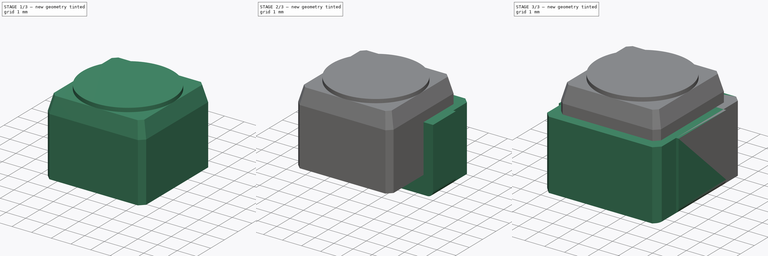
[diagram: build sequence overview — one tinted view per stage of 3, left to right]
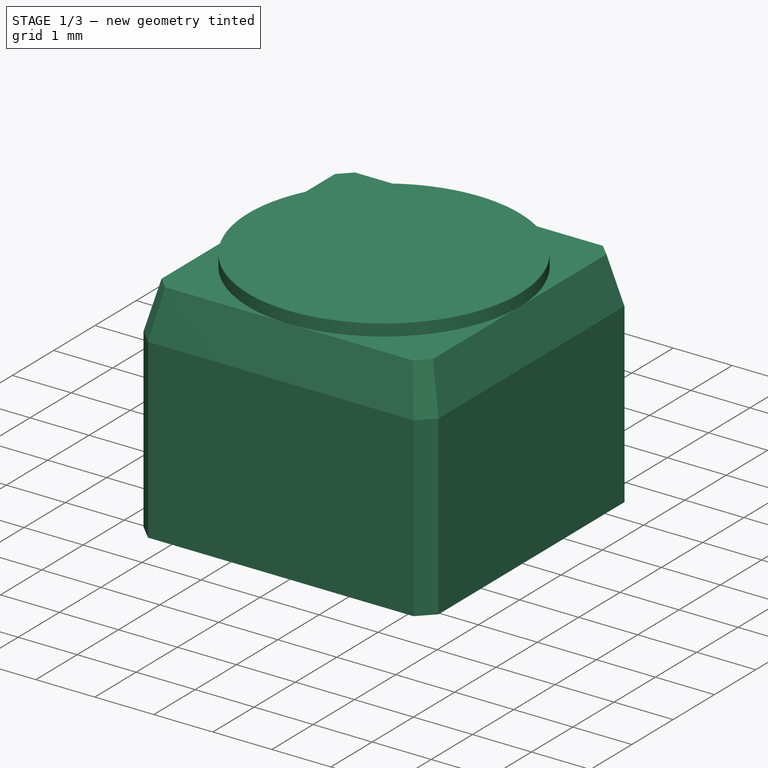
[diagram: stage 1 of 3 — iso view after this stage's code; geometry added in this stage tinted green]
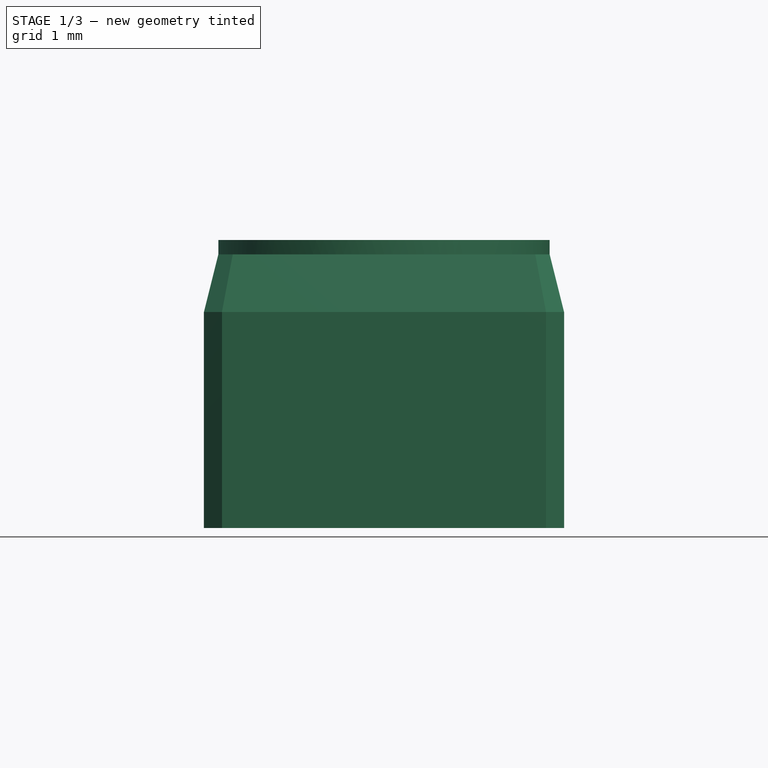
[diagram: stage 1 of 3 — front view after this stage's code; geometry added in this stage tinted green]
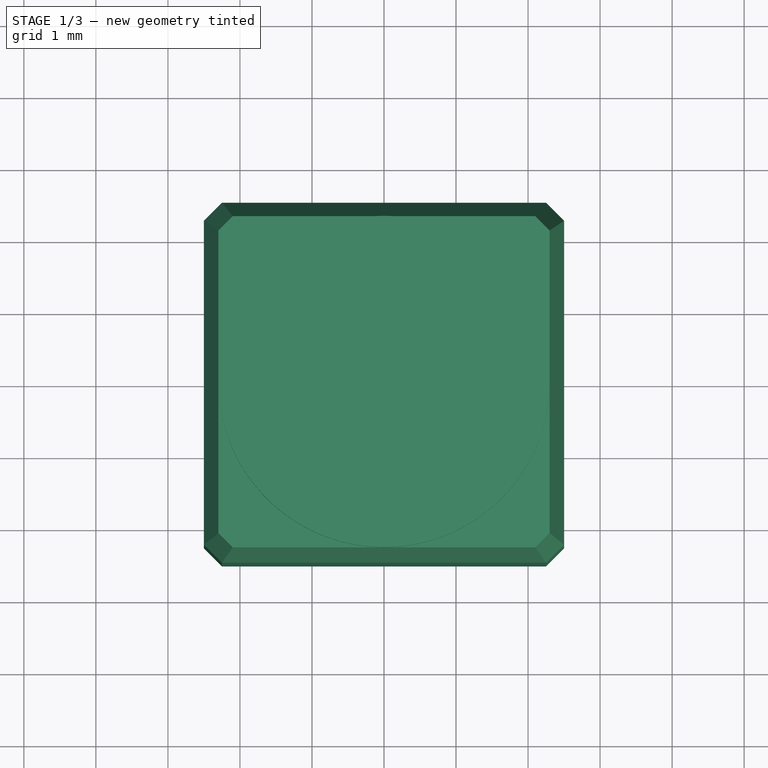
[diagram: stage 1 of 3 — top view after this stage's code; geometry added in this stage tinted green]
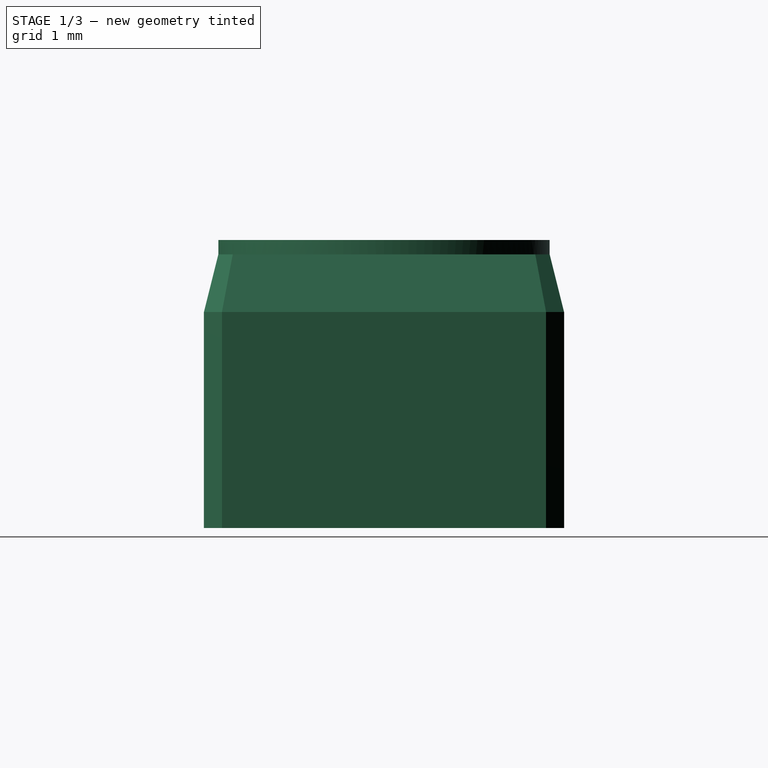
[diagram: stage 1 of 3 — right view after this stage's code; geometry added in this stage tinted green]
FCSTD DOCUMENT  (FreeCAD 1.0R38806 (Git))
Label: SW_Push_SPEH
License: All rights reserved
LicenseURL: http://en.wikipedia.org/wiki/All_rights_reserved
objects: Sketcher::SketchObject×7, PartDesign::Mirrored×4, PartDesign::Body×3, PartDesign::Pad×2, PartDesign::MultiTransform×2, PartDesign::Plane×1, PartDesign::AdditivePipe×1, Part::Mirroring×1, PartDesign::Fillet×1, PartDesign::AdditiveLoft×1, App::Part×1
note: 46 computed .brp shape members not serialized (recipe doc carries the construction recipe); baked Part::Feature solids carry a one-line shape summary decoded from their .brp

FEATURE [PartDesign::Body] Body  label="Stator"
  AllowCompound = false
  Group = -> [Sketch,Pad,Fillet,MultiTransform,Mirrored,Mirrored001]
  Origin = -> Origin
  Tip = -> MultiTransform
FEATURE [Sketcher::SketchObject] Sketch003  label="ac_h1"
  ArcFitTolerance = 1e-06
  AttachmentOffset = pos=(0,0,1) rot=(0,0,1;0rad)
  AttachmentSupport = -> [XY_Plane002]
  FullyConstrained = true
  MakeInternals = false
  MapMode = 5
  Placement = pos=(0,0,1) rot=(0,0,1;0rad)
  sketch-geometry (5):
    g0: LineSegment StartX=0 StartY=2.5 StartZ=0 EndX=0 EndY=0 EndZ=0
    g1: LineSegment StartX=0 StartY=0 StartZ=0 EndX=2.5 EndY=0 EndZ=0
    g2: LineSegment StartX=2.5 StartY=0 StartZ=0 EndX=2.5 EndY=2.25 EndZ=0
    g3: LineSegment StartX=2.25 StartY=2.5 StartZ=0 EndX=0 EndY=2.5 EndZ=0
    g4: LineSegment StartX=2.25 StartY=2.5 StartZ=0 EndX=2.5 EndY=2.25 EndZ=0
  constraints (15):
    c: Coincident(g0,g1)
    c: Coincident(g1,g2)
    c: Coincident(g3,g0)
    c: Vertical(g0)
    c: Vertical(g2)
    c: Horizontal(g1)
    c: Horizontal(g3)
    c: PointOnObject(g0,g-2)
    c: PointOnObject(g1,g-1)
    c: Coincident(g3,g4)
    c: Coincident(g4,g2)
    c: Equal(g1,g0)
    c: DistanceX(g1,g1) = 2.5
    c: DistanceX(g4,g4) = 0.25
    c: Equal(g2,g3)
FEATURE [Sketcher::SketchObject] Sketch004  label="ac_h4"
  ArcFitTolerance = 1e-06
  AttachmentOffset = pos=(0,0,4) rot=(0,0,1;0rad)
  AttachmentSupport = -> [XY_Plane002]
  FullyConstrained = true
  MakeInternals = false
  MapMode = 5
  Placement = pos=(0,0,4) rot=(0,0,1;0rad)
  sketch-geometry (5):
    g0: LineSegment StartX=0 StartY=2.5 StartZ=0 EndX=0 EndY=0 EndZ=0
    g1: LineSegment StartX=0 StartY=0 StartZ=0 EndX=2.5 EndY=0 EndZ=0
    g2: LineSegment StartX=2.5 StartY=0 StartZ=0 EndX=2.5 EndY=2.25 EndZ=0
    g3: LineSegment StartX=2.25 StartY=2.5 StartZ=0 EndX=0 EndY=2.5 EndZ=0
    g4: LineSegment StartX=2.25 StartY=2.5 StartZ=0 EndX=2.5 EndY=2.25 EndZ=0
  constraints (15):
    c: Coincident(g0,g1)
    c: Coincident(g1,g2)
    c: Coincident(g3,g0)
    c: Vertical(g0)
    c: Vertical(g2)
    c: Horizontal(g1)
    c: Horizontal(g3)
    c: PointOnObject(g0,g-2)
    c: PointOnObject(g1,g-1)
    c: Coincident(g3,g4)
    c: Coincident(g4,g2)
    c: Equal(g1,g0)
    c: DistanceX(g1,g1) = 2.5
    c: DistanceX(g4,g4) = 0.25
    c: Equal(g2,g3)
FEATURE [Sketcher::SketchObject] Sketch005  label="ac_h4.8"
  ArcFitTolerance = 1e-06
  AttachmentOffset = pos=(0,0,4.8) rot=(0,0,1;0rad)
  AttachmentSupport = -> [XY_Plane002]
  FullyConstrained = true
  MakeInternals = false
  MapMode = 5
  Placement = pos=(0,0,4.8) rot=(0,0,1;0rad)
  sketch-geometry (5):
    g0: LineSegment StartX=0 StartY=2.3 StartZ=0 EndX=0 EndY=0 EndZ=0
    g1: LineSegment StartX=0 StartY=0 StartZ=0 EndX=2.3 EndY=0 EndZ=0
    g2: LineSegment StartX=2.3 StartY=0 StartZ=0 EndX=2.3 EndY=2.1 EndZ=0
    g3: LineSegment StartX=2.1 StartY=2.3 StartZ=0 EndX=0 EndY=2.3 EndZ=0
    g4: LineSegment StartX=2.1 StartY=2.3 StartZ=0 EndX=2.3 EndY=2.1 EndZ=0
  constraints (15):
    c: Coincident(g0,g1)
    c: Coincident(g1,g2)
    c: Coincident(g3,g0)
    c: Vertical(g0)
    c: Vertical(g2)
    c: Horizontal(g1)
    c: Horizontal(g3)
    c: PointOnObject(g0,g-2)
    c: PointOnObject(g1,g-1)
    c: Coincident(g3,g4)
    c: Coincident(g4,g2)
    c: Equal(g1,g0)
    c: DistanceX(g1,g1) = 2.3
    c: DistanceX(g4,g4) = 0.2
    c: Equal(g2,g3)
FEATURE [PartDesign::AdditiveLoft] AdditiveLoft
  Closed = false
  Profile = -> Sketch003
  Refine = true
  Ruled = true
  Sections = -> [Sketch004,Sketch005]
  Suppressed = false
FEATURE [Sketcher::SketchObject] Sketch006
  ArcFitTolerance = 1e-06
  AttachmentOffset = pos=(0,0,5) rot=(0,0,1;0rad)
  AttachmentSupport = -> [XY_Plane002]
  FullyConstrained = true
  MakeInternals = false
  MapMode = 5
  Placement = pos=(0,0,5) rot=(0,0,1;0rad)
  sketch-geometry (1):
    g0: Circle CenterX=0 CenterY=0 CenterZ=0 NormalX=0 NormalY=0 NormalZ=1 AngleXU=0 Radius=2.3
  constraints (2):
    c: Coincident(g0,g-1)
    c: Diameter(g0) = 4.6
FEATURE [PartDesign::Mirrored] Mirrored002
  MirrorPlane = -> Sketch003 [V_Axis]
  Refine = true
  Suppressed = false
  TransformMode = 0
FEATURE [PartDesign::Mirrored] Mirrored003
  MirrorPlane = -> Sketch003 [H_Axis]
  Refine = true
  Suppressed = false
  TransformMode = 0
FEATURE [PartDesign::MultiTransform] MultiTransform001
  BaseFeature = -> AdditiveLoft
  Originals = -> [AdditiveLoft]
  Refine = true
  Suppressed = false
  TransformMode = 0
  Transformations = -> [Mirrored002,Mirrored003]
FEATURE [PartDesign::Pad] Pad001
  BaseFeature = -> MultiTransform001
  Direction = (0,0,1)
  Length = 10
  Length2 = 10
  Profile = -> Sketch006
  ReferenceAxis = -> Sketch006 [N_Axis]
  Refine = true
  Reversed = true
  Suppressed = false
  Type = 2
FEATURE [PartDesign::Body] Body002  label="Actor"
  AllowCompound = false
  Group = -> [Sketch003,Sketch004,Sketch005,AdditiveLoft,Sketch006,MultiTransform001,Mirrored002,Mirrored003,Pad001]
  Origin = -> Origin002
  Tip = -> Pad001
FEATURE [App::Part] Part  label="SW_Push_SPEH"
  Group = -> [Body001,Part__Mirroring,Body,Body002]
  Origin = -> Origin003
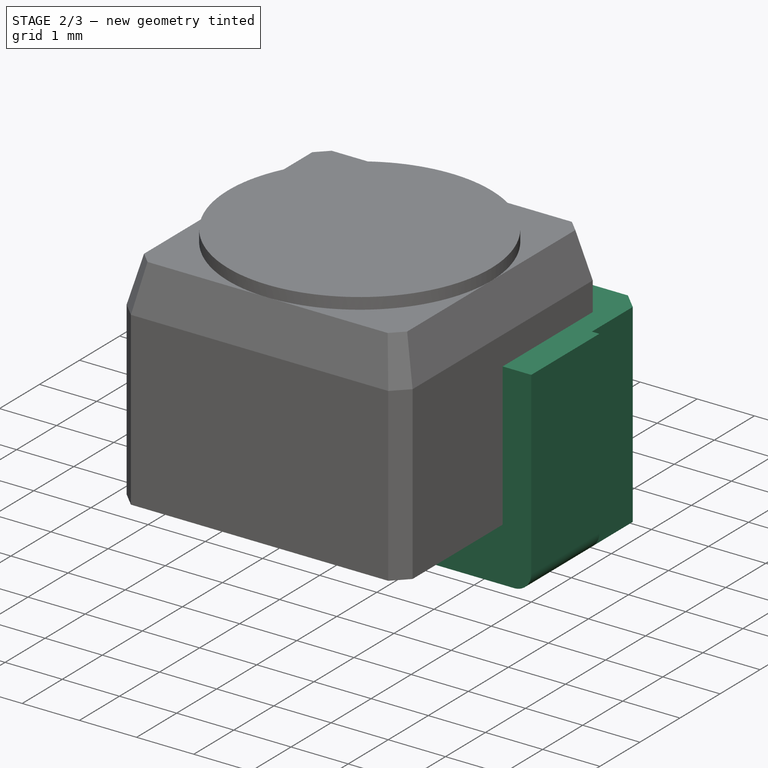
[diagram: stage 2 of 3 — iso view after this stage's code; geometry added in this stage tinted green]
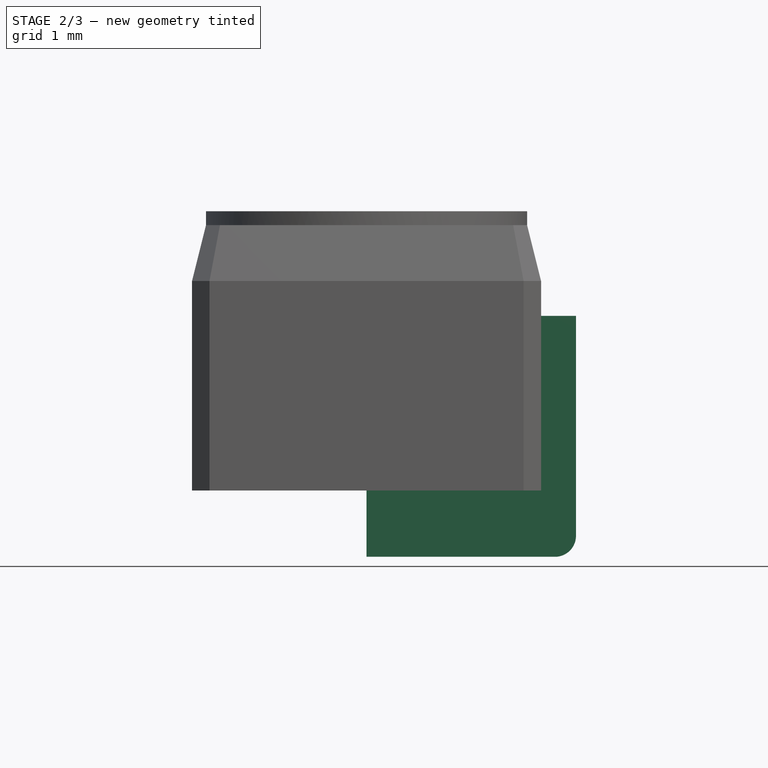
[diagram: stage 2 of 3 — front view after this stage's code; geometry added in this stage tinted green]
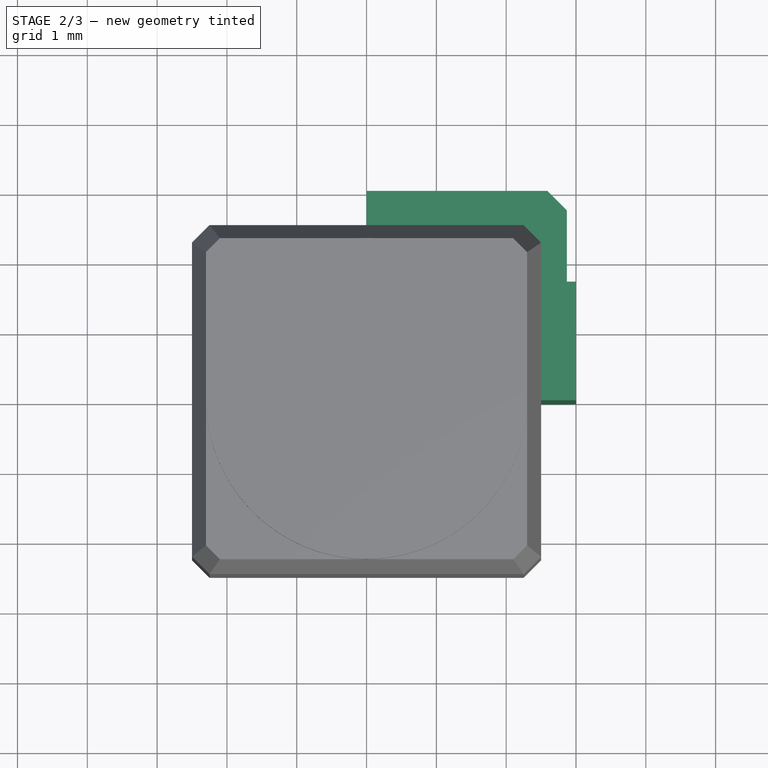
[diagram: stage 2 of 3 — top view after this stage's code; geometry added in this stage tinted green]
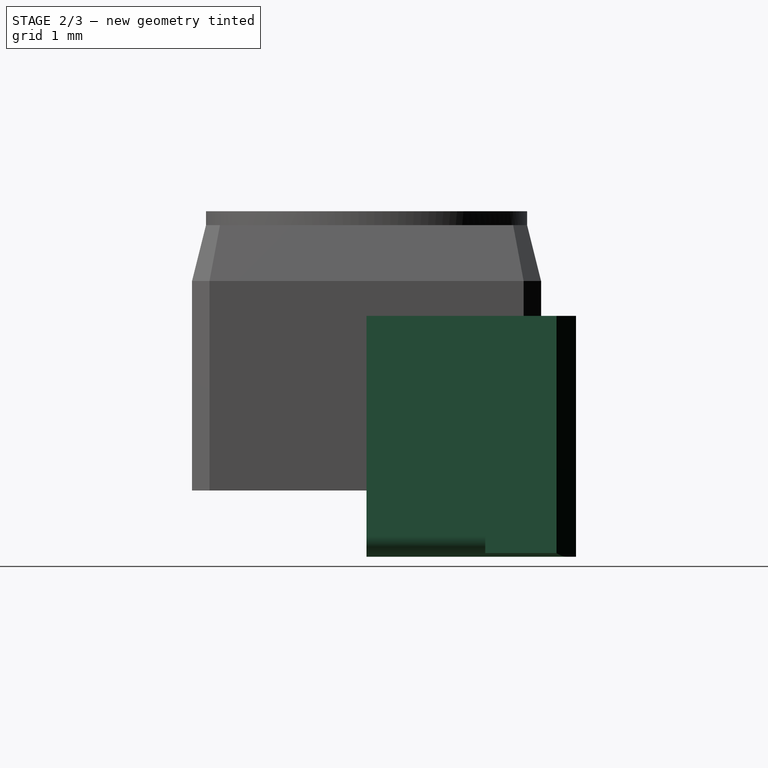
[diagram: stage 2 of 3 — right view after this stage's code; geometry added in this stage tinted green]
FEATURE [Sketcher::SketchObject] Sketch
  ArcFitTolerance = 1e-06
  AttachmentOffset = pos=(0,0,0.05) rot=(0,0,1;0rad)
  AttachmentSupport = -> [XY_Plane]
  FullyConstrained = true
  MakeInternals = false
  MapMode = 5
  Placement = pos=(0,0,0.05) rot=(0,0,1;0rad)
  sketch-geometry (7):
    g0: LineSegment StartX=0 StartY=3 StartZ=0 EndX=0 EndY=0 EndZ=0
    g1: LineSegment StartX=0 StartY=0 StartZ=0 EndX=3 EndY=0 EndZ=0
    g2: LineSegment StartX=3 StartY=0 StartZ=0 EndX=3 EndY=1.7 EndZ=0
    g3: LineSegment StartX=2.59 StartY=3 StartZ=0 EndX=0 EndY=3 EndZ=0
    g4: LineSegment StartX=2.59 StartY=3 StartZ=0 EndX=2.87 EndY=2.72 EndZ=0
    g5: LineSegment StartX=2.87 StartY=2.72 StartZ=0 EndX=2.87 EndY=1.7 EndZ=0
    g6: LineSegment StartX=2.87 StartY=1.7 StartZ=0 EndX=3 EndY=1.7 EndZ=0
  constraints (20):
    c: Coincident(g0,g1)
    c: Coincident(g1,g2)
    c: Coincident(g3,g0)
    c: Vertical(g0)
    c: Vertical(g2)
    c: Horizontal(g1)
    c: Horizontal(g3)
    c: Coincident(g0,g-1)
    c: Coincident(g3,g4)
    c: Equal(g1,g0)
    c: Vertical(g5)
    c: Coincident(g5,g6)
    c: Horizontal(g6)
    c: Coincident(g2,g6)
    c: Coincident(g4,g5)
    c: DistanceX(g-1,g1) = 3
    c: DistanceX(g4,g2) = 0.13
    c: DistanceX(g4,g4) = 0.28
    c: Angle(g4,g5) = 2.35619
    c: DistanceY(g2,g2) = 1.7
FEATURE [PartDesign::Pad] Pad
  Direction = (0,0,1)
  Length = 3.45
  Length2 = 10
  Profile = -> Sketch
  ReferenceAxis = -> Sketch [N_Axis]
  Refine = true
  Suppressed = false
  Type = 0
FEATURE [PartDesign::Fillet] Fillet
  Base = -> Pad [Edge9]
  BaseFeature = -> Pad
  Radius = 0.3
  Refine = true
  SupportTransform = false
  Suppressed = false
  UseAllEdges = false
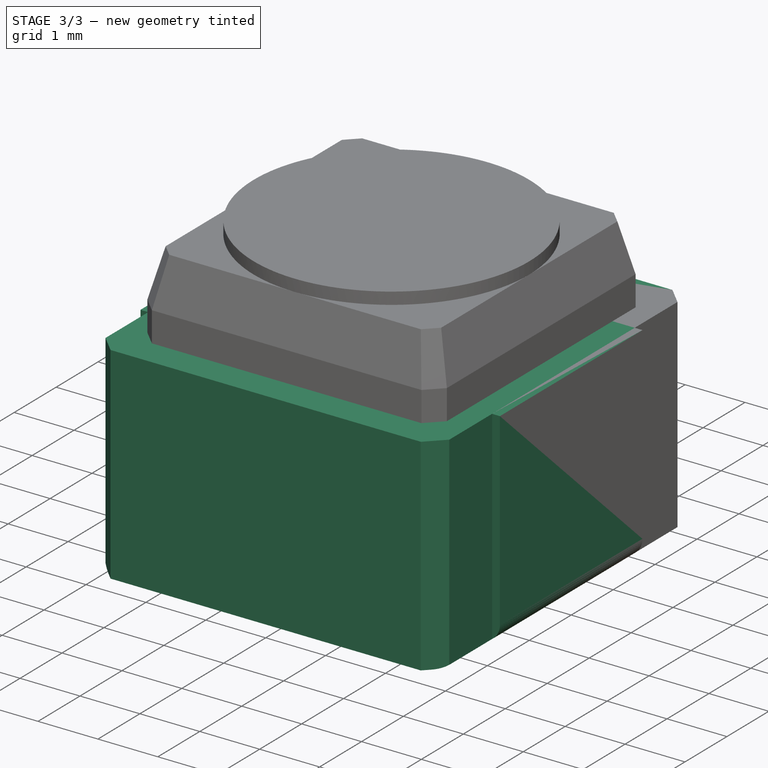
[diagram: stage 3 of 3 — iso view after this stage's code; geometry added in this stage tinted green]
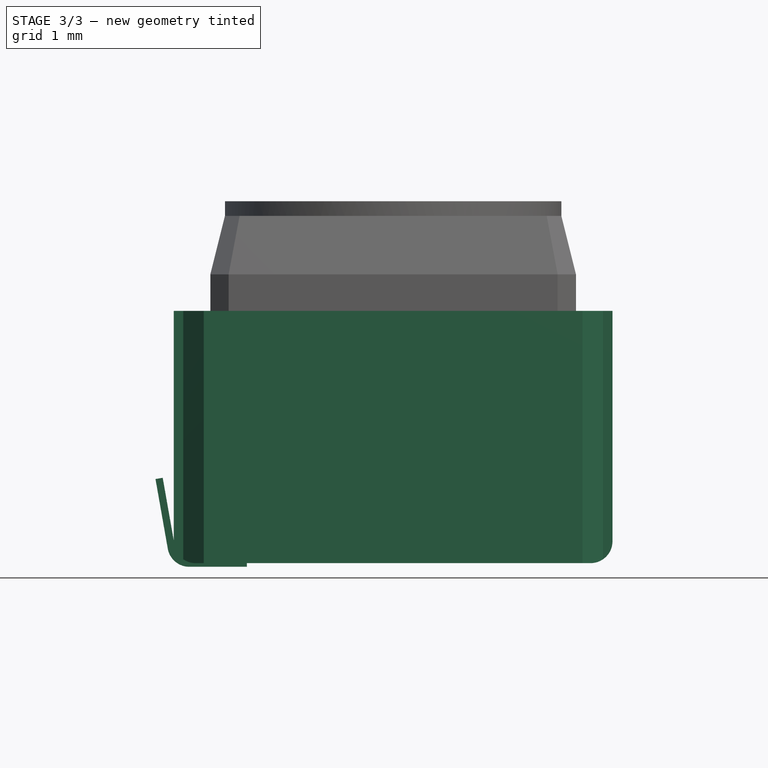
[diagram: stage 3 of 3 — front view after this stage's code; geometry added in this stage tinted green]
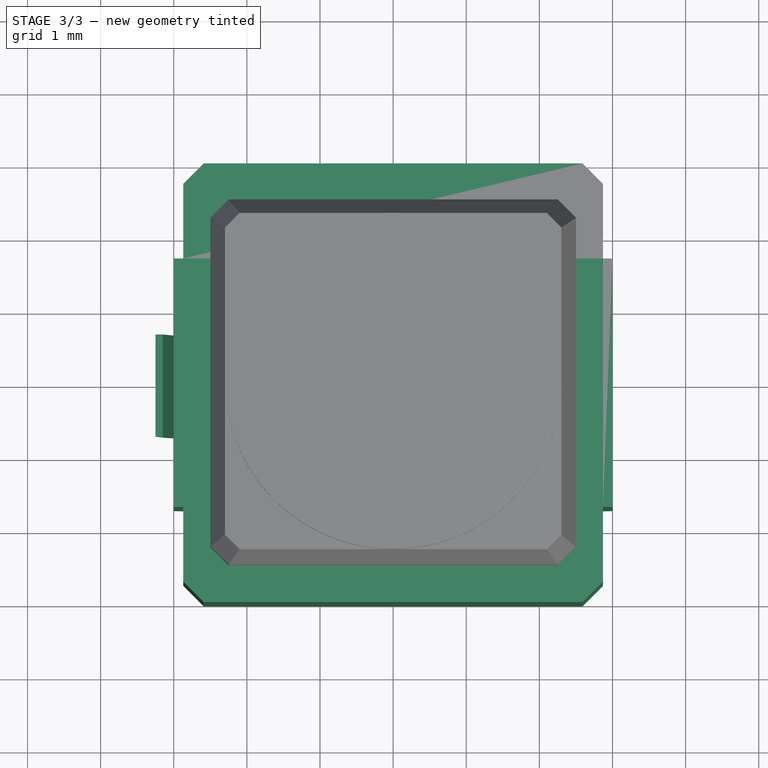
[diagram: stage 3 of 3 — top view after this stage's code; geometry added in this stage tinted green]
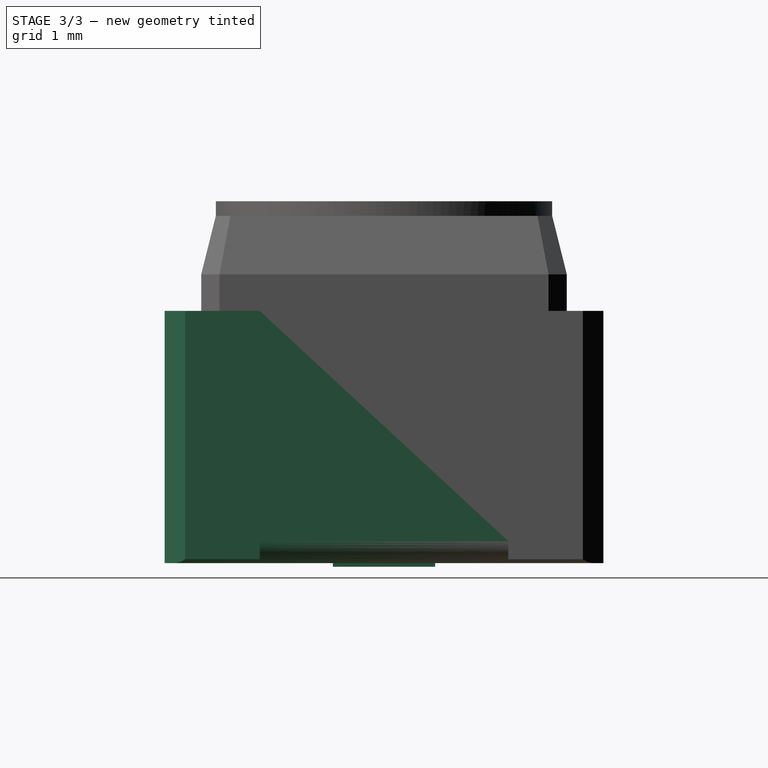
[diagram: stage 3 of 3 — right view after this stage's code; geometry added in this stage tinted green]
FEATURE [PartDesign::Mirrored] Mirrored
  MirrorPlane = -> Sketch [V_Axis]
  Refine = true
  Suppressed = false
  TransformMode = 0
FEATURE [PartDesign::Mirrored] Mirrored001
  MirrorPlane = -> Sketch [H_Axis]
  Refine = true
  Suppressed = false
  TransformMode = 0
FEATURE [Sketcher::SketchObject] Sketch001  label="el_trj"
  ArcFitTolerance = 1e-06
  AttachmentSupport = -> [XZ_Plane001]
  FullyConstrained = true
  MakeInternals = false
  MapMode = 5
  Placement = pos=(0,0,0) rot=(1,0,0;1.5708rad)
  sketch-geometry (4):
    g0: LineSegment StartX=3.25 StartY=1.2 StartZ=0 EndX=3.08212 EndY=0.247906 EndZ=0
    g1: LineSegment StartX=2.78668 StartY=0 StartZ=0 EndX=2 EndY=0 EndZ=0
    g2: ArcOfCircle CenterX=2.78668 CenterY=0.3 CenterZ=0 NormalX=0 NormalY=0 NormalZ=1 AngleXU=0 Radius=0.3 StartAngle=4.71239 EndAngle=6.10865
    g3: GeomPoint [constr] X=3.03841 Y=0 Z=0
  constraints (11):
    c: PointOnObject(g1,g-1)
    c: Horizontal(g1)
    c: PointOnObject(g3,g1)
    c: PointOnObject(g3,g0)
    c: Tangent(g1,g2) = 1.5708
    c: Tangent(g0,g2) = 1.5708
    c: Radius(g2) = 0.3
    c: DistanceY(g-1,g0) = 1.2
    c: DistanceX(g-1,g0) = 3.25
    c: Angle(g-1,g0) = 1.39626
    c: DistanceX(g-1,g1) = 2
FEATURE [PartDesign::Plane] DatumPlane
  AttachmentSupport = -> [Sketch001]
  Length = 60
  MapMode = 7
  Placement = pos=(2,0,0) rot=(0.57735,0.57735,0.57735;2.0944rad)
  ResizeMode = 0
  Width = 60
FEATURE [Sketcher::SketchObject] Sketch002  label="el_crs"
  ArcFitTolerance = 1e-06
  AttachmentSupport = -> [DatumPlane]
  FullyConstrained = true
  MakeInternals = false
  MapMode = 5
  Placement = pos=(2,0,0) rot=(0.57735,0.57735,0.57735;2.0944rad)
  sketch-geometry (4):
    g0: LineSegment StartX=-0.7 StartY=0.1 StartZ=0 EndX=-0.7 EndY=0 EndZ=0
    g1: LineSegment StartX=-0.7 StartY=0 StartZ=0 EndX=0.7 EndY=0 EndZ=0
    g2: LineSegment StartX=0.7 StartY=0 StartZ=0 EndX=0.7 EndY=0.1 EndZ=0
    g3: LineSegment StartX=0.7 StartY=0.1 StartZ=0 EndX=-0.7 EndY=0.1 EndZ=0
  constraints (11):
    c: Coincident(g0,g1)
    c: Coincident(g1,g2)
    c: Coincident(g2,g3)
    c: Coincident(g3,g0)
    c: Vertical(g0)
    c: Vertical(g2)
    c: Horizontal(g1)
    c: PointOnObject(g1,g-1)
    c: DistanceX(g3,g3) = 1.4
    c: DistanceY(g2,g2) = 0.1
    c: Symmetric(g2,g0,g-2)
FEATURE [PartDesign::AdditivePipe] AdditivePipe
  AuxilleryCurvelinear = true
  AuxillerySpineTangent = false
  Binormal = (0,0,0)
  Mode = 0
  Placement = pos=(2,0,0) rot=(0.57735,0.57735,0.57735;2.0944rad)
  Profile = -> Sketch002
  Refine = true
  Spine = -> Sketch001
  SpineTangent = false
  Suppressed = false
  Transformation = 0
  Transition = 0
FEATURE [PartDesign::Body] Body001  label="Electrode right"
  AllowCompound = false
  Group = -> [Sketch001,DatumPlane,Sketch002,AdditivePipe]
  Origin = -> Origin001
  Tip = -> AdditivePipe
FEATURE [Part::Mirroring] Part__Mirroring  label="Electrode left"
  Base = (0,0,0)
  Normal = (1,0,0)
  Source = -> Body001
FEATURE [PartDesign::MultiTransform] MultiTransform
  BaseFeature = -> Fillet
  Originals = -> [Pad,Fillet]
  Refine = true
  Suppressed = false
  TransformMode = 0
  Transformations = -> [Mirrored,Mirrored001]
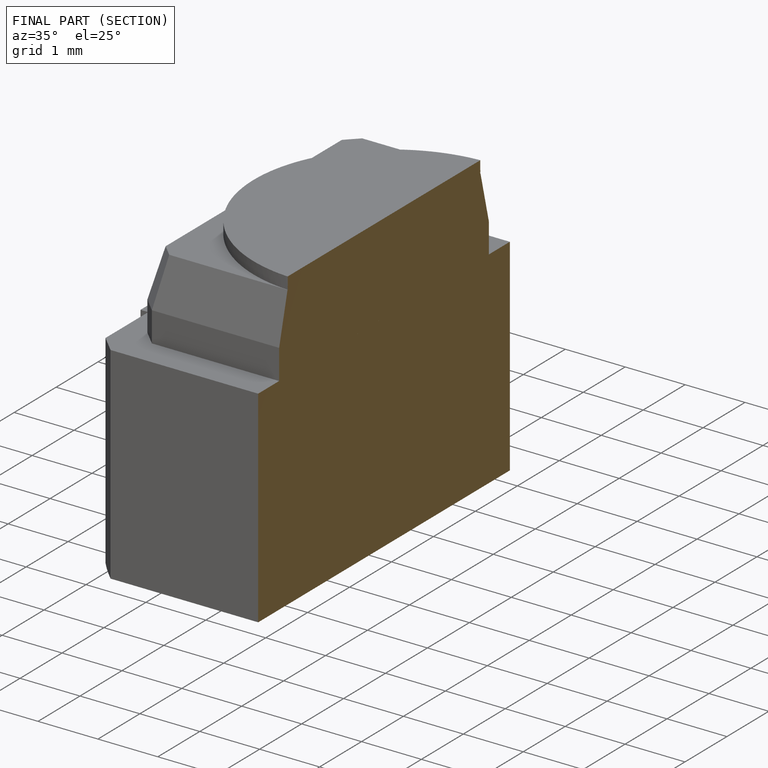
[diagram: finished part — half-section view (interior)]
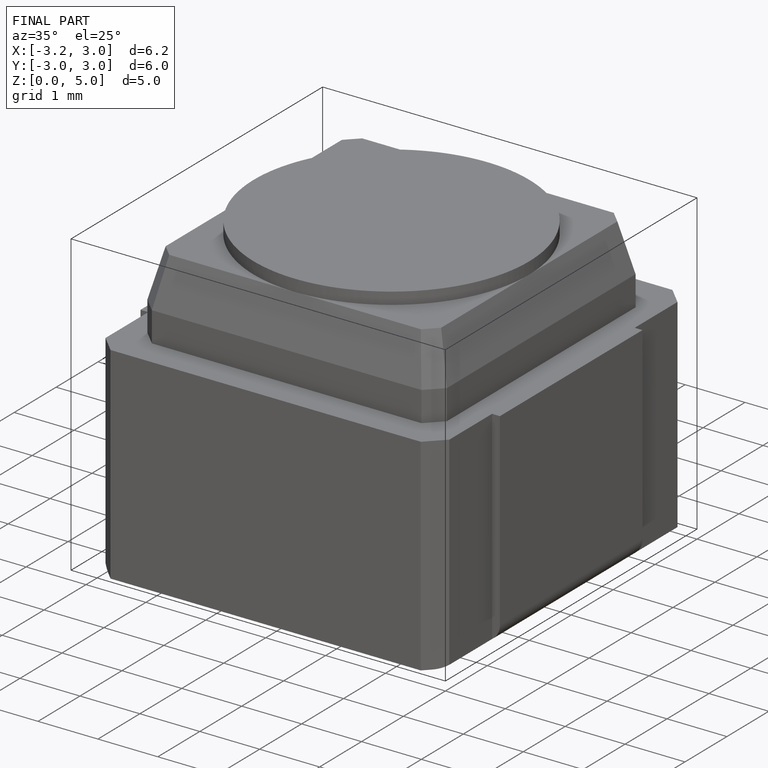
[diagram: finished part — iso view with bounding-box wireframe]
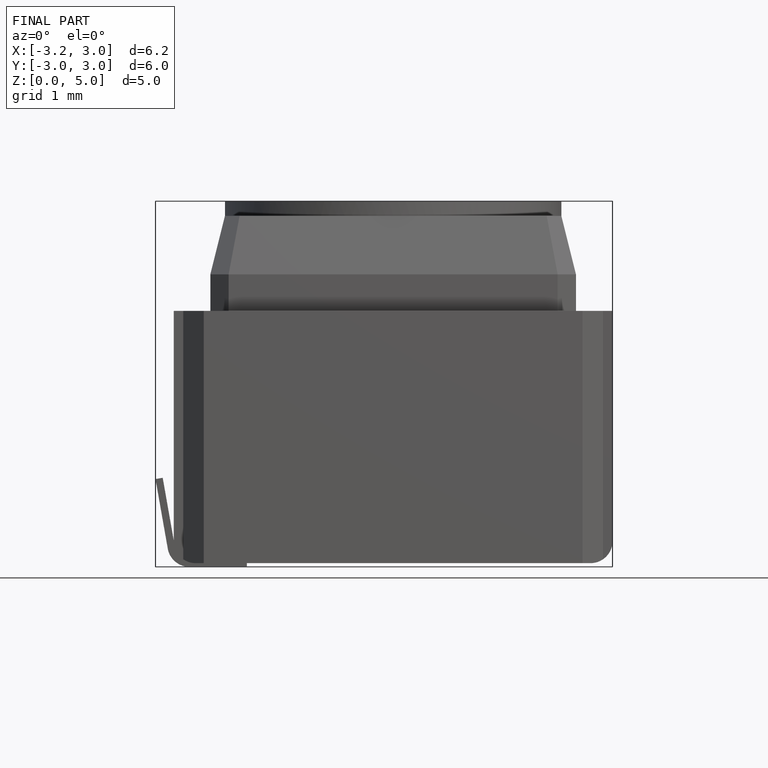
[diagram: finished part — front view with bounding-box wireframe]
